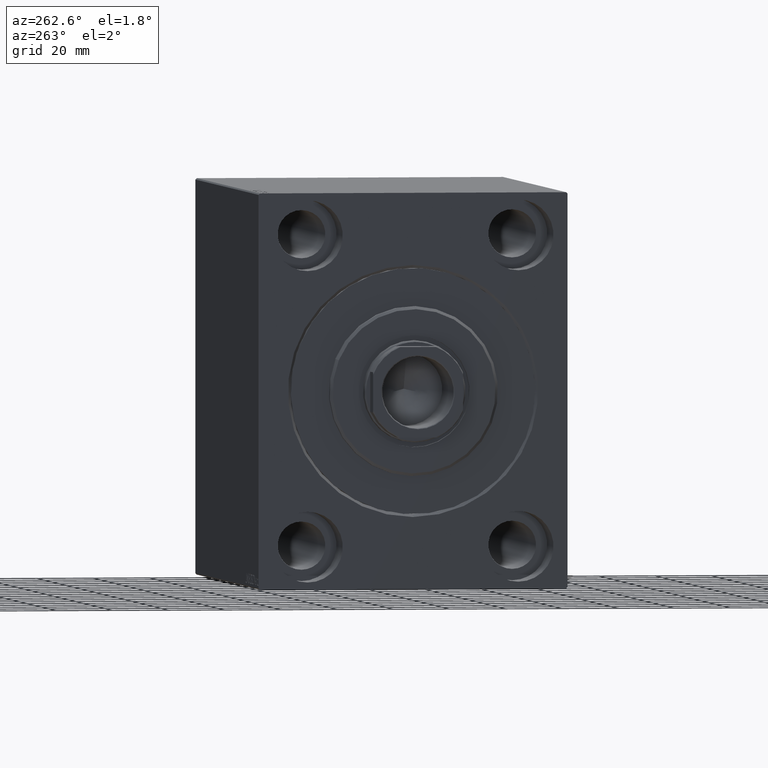
[diagram: clean part render]
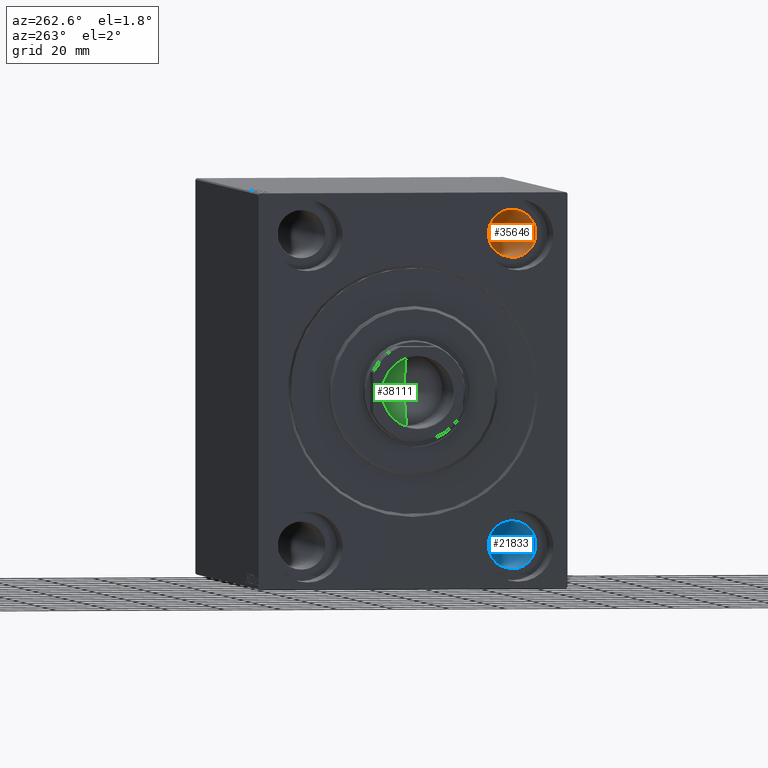
[diagram: same view with three faces highlighted in distinct colors, each labeled with its STEP entity id]
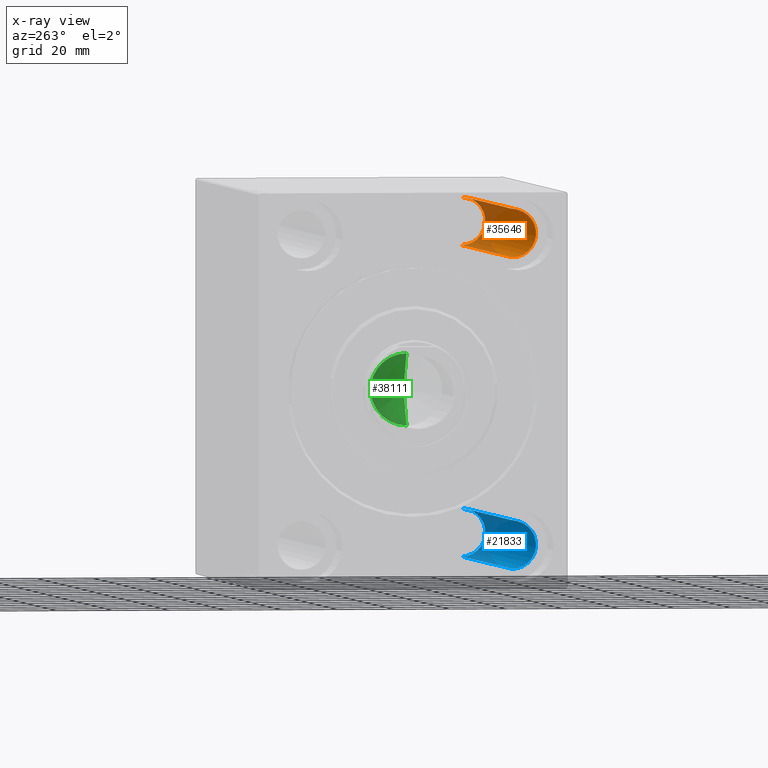
[diagram: x-ray of the same camera — body ghosted, the three highlighted faces saturated]
A machine part, auxiliary view with three faces highlighted in distinct colors.
The next image is the same camera in x-ray (body ghosted, the three faces saturated) — at least one of them is partly hidden behind the body in this view.
Their STEP definitions:

[orange] entity #35646 — the highlighted cylindrical surface (edge-blend (fillet) strip) has radius 8.5 mm, axis along (-1, -0, -0).
#3158 = VERTEX_POINT ( 'NONE', #20635 ) ;
#3247 = LINE ( 'NONE', #13944, #30637 ) ;
#3923 = ORIENTED_EDGE ( 'NONE', *, *, #6316, .T. ) ;
#4329 = DIRECTION ( 'NONE',  ( -1.000000000000000000, -0.000000000000000000, -0.000000000000000000 ) ) ;
#6017 = CARTESIAN_POINT ( 'NONE',  ( 173.0000000000000000, -37.50000000000000711, 55.00000000000000711 ) ) ;
#6291 = CARTESIAN_POINT ( 'NONE',  ( 155.9999999999999716, -37.50000000000000711, 55.00000000000000711 ) ) ;
#6316 = EDGE_CURVE ( 'NONE', #33287, #39830, #25066, .T. ) ;
#6669 = EDGE_CURVE ( 'NONE', #33287, #3158, #14480, .T. ) ;
#7268 = CIRCLE ( 'NONE', #15083, 8.499999999999992895 ) ;
#7787 = ORIENTED_EDGE ( 'NONE', *, *, #38730, .F. ) ;
#8178 = AXIS2_PLACEMENT_3D ( 'NONE', #6291, #15876, #29489 ) ;
#9372 = FACE_OUTER_BOUND ( 'NONE', #36812, .T. ) ;
#9732 = CARTESIAN_POINT ( 'NONE',  ( 155.9999999999999716, -37.50000000000000711, 46.50000000000001421 ) ) ;
#13944 = CARTESIAN_POINT ( 'NONE',  ( 173.0000000000000000, -37.50000000000000711, 63.50000000000000000 ) ) ;
#14480 = CIRCLE ( 'NONE', #8178, 8.499999999999992895 ) ;
#14768 = CARTESIAN_POINT ( 'NONE',  ( 17.00000000000001421, -37.50000000000000711, 46.50000000000001421 ) ) ;
#15083 = AXIS2_PLACEMENT_3D ( 'NONE', #31359, #38262, #20879 ) ;
#15876 = DIRECTION ( 'NONE',  ( -1.000000000000000000, -0.000000000000000000, -0.000000000000000000 ) ) ;
#18442 = CARTESIAN_POINT ( 'NONE',  ( 17.00000000000001421, -37.50000000000000711, 63.50000000000000000 ) ) ;
#19618 = DIRECTION ( 'NONE',  ( -1.000000000000000000, -0.000000000000000000, -0.000000000000000000 ) ) ;
#20635 = CARTESIAN_POINT ( 'NONE',  ( 155.9999999999999716, -37.50000000000000711, 63.50000000000000000 ) ) ;
#20879 = DIRECTION ( 'NONE',  ( 0.000000000000000000, 0.000000000000000000, 1.000000000000000000 ) ) ;
#21559 = EDGE_CURVE ( 'NONE', #39830, #34221, #7268, .T. ) ;
#23758 = VECTOR ( 'NONE', #4329, 1000.000000000000000 ) ;
#25066 = LINE ( 'NONE', #25280, #23758 ) ;
#25280 = CARTESIAN_POINT ( 'NONE',  ( 173.0000000000000000, -37.50000000000000711, 46.50000000000001421 ) ) ;
#27548 = DIRECTION ( 'NONE',  ( -1.000000000000000000, -0.000000000000000000, -0.000000000000000000 ) ) ;
#29489 = DIRECTION ( 'NONE',  ( 0.000000000000000000, 0.000000000000000000, -1.000000000000000000 ) ) ;
#29683 = ORIENTED_EDGE ( 'NONE', *, *, #21559, .T. ) ;
#30637 = VECTOR ( 'NONE', #27548, 1000.000000000000000 ) ;
#31359 = CARTESIAN_POINT ( 'NONE',  ( 17.00000000000001421, -37.50000000000000711, 55.00000000000000711 ) ) ;
#33220 = DIRECTION ( 'NONE',  ( 0.000000000000000000, 0.000000000000000000, 1.000000000000000000 ) ) ;
#33287 = VERTEX_POINT ( 'NONE', #9732 ) ;
#34221 = VERTEX_POINT ( 'NONE', #18442 ) ;
#34529 = ORIENTED_EDGE ( 'NONE', *, *, #6669, .F. ) ;
#35624 = AXIS2_PLACEMENT_3D ( 'NONE', #6017, #19618, #33220 ) ;
#35646 = ADVANCED_FACE ( 'NONE', ( #9372 ), #36127, .F. ) ;
#36127 = CYLINDRICAL_SURFACE ( 'NONE', #35624, 8.499999999999992895 ) ;
#36812 = EDGE_LOOP ( 'NONE', ( #34529, #3923, #29683, #7787 ) ) ;
#38262 = DIRECTION ( 'NONE',  ( -1.000000000000000000, 0.000000000000000000, 0.000000000000000000 ) ) ;
#38730 = EDGE_CURVE ( 'NONE', #3158, #34221, #3247, .T. ) ;
#39830 = VERTEX_POINT ( 'NONE', #14768 ) ;

[blue] entity #21833 — the highlighted cylindrical surface (edge-blend (fillet) strip) has radius 8.5 mm, axis along (-1, -0, -0).
#1514 = EDGE_LOOP ( 'NONE', ( #4709, #2466, #18331, #16770 ) ) ;
#1848 = AXIS2_PLACEMENT_3D ( 'NONE', #26862, #36670, #37559 ) ;
#2105 = LINE ( 'NONE', #28866, #14122 ) ;
#2466 = ORIENTED_EDGE ( 'NONE', *, *, #20677, .T. ) ;
#3036 = VERTEX_POINT ( 'NONE', #22875 ) ;
#3209 = CIRCLE ( 'NONE', #5329, 8.499999999999992895 ) ;
#4709 = ORIENTED_EDGE ( 'NONE', *, *, #11965, .F. ) ;
#5170 = VERTEX_POINT ( 'NONE', #38046 ) ;
#5329 = AXIS2_PLACEMENT_3D ( 'NONE', #24376, #41303, #37093 ) ;
#6349 = CYLINDRICAL_SURFACE ( 'NONE', #1848, 8.499999999999992895 ) ;
#6833 = CARTESIAN_POINT ( 'NONE',  ( 17.00000000000001421, -37.50000000000002132, -54.99999999999999289 ) ) ;
#9544 = CARTESIAN_POINT ( 'NONE',  ( 17.00000000000001421, -37.50000000000002132, -63.49999999999998579 ) ) ;
#11965 = EDGE_CURVE ( 'NONE', #29806, #5170, #3209, .T. ) ;
#12365 = DIRECTION ( 'NONE',  ( -1.000000000000000000, -0.000000000000000000, -0.000000000000000000 ) ) ;
#14122 = VECTOR ( 'NONE', #12365, 1000.000000000000000 ) ;
#16602 = VERTEX_POINT ( 'NONE', #9544 ) ;
#16770 = ORIENTED_EDGE ( 'NONE', *, *, #25059, .F. ) ;
#18331 = ORIENTED_EDGE ( 'NONE', *, *, #24543, .T. ) ;
#19005 = VECTOR ( 'NONE', #20491, 1000.000000000000000 ) ;
#20491 = DIRECTION ( 'NONE',  ( -1.000000000000000000, -0.000000000000000000, -0.000000000000000000 ) ) ;
#20677 = EDGE_CURVE ( 'NONE', #29806, #16602, #2105, .T. ) ;
#21833 = ADVANCED_FACE ( 'NONE', ( #33330 ), #6349, .F. ) ;
#22875 = CARTESIAN_POINT ( 'NONE',  ( 17.00000000000001421, -37.50000000000002132, -46.50000000000000000 ) ) ;
#24376 = CARTESIAN_POINT ( 'NONE',  ( 155.9999999999999716, -37.50000000000002132, -54.99999999999999289 ) ) ;
#24543 = EDGE_CURVE ( 'NONE', #16602, #3036, #30383, .T. ) ;
#25059 = EDGE_CURVE ( 'NONE', #5170, #3036, #40776, .T. ) ;
#26862 = CARTESIAN_POINT ( 'NONE',  ( 173.0000000000000000, -37.50000000000002132, -54.99999999999999289 ) ) ;
#27564 = DIRECTION ( 'NONE',  ( -1.000000000000000000, 0.000000000000000000, 0.000000000000000000 ) ) ;
#28866 = CARTESIAN_POINT ( 'NONE',  ( 173.0000000000000000, -37.50000000000002132, -63.49999999999998579 ) ) ;
#29806 = VERTEX_POINT ( 'NONE', #31816 ) ;
#30383 = CIRCLE ( 'NONE', #33948, 8.499999999999992895 ) ;
#31816 = CARTESIAN_POINT ( 'NONE',  ( 155.9999999999999716, -37.50000000000002132, -63.49999999999998579 ) ) ;
#33330 = FACE_OUTER_BOUND ( 'NONE', #1514, .T. ) ;
#33948 = AXIS2_PLACEMENT_3D ( 'NONE', #6833, #27564, #43610 ) ;
#36670 = DIRECTION ( 'NONE',  ( -1.000000000000000000, -0.000000000000000000, -0.000000000000000000 ) ) ;
#36996 = CARTESIAN_POINT ( 'NONE',  ( 173.0000000000000000, -37.50000000000002132, -46.50000000000000000 ) ) ;
#37093 = DIRECTION ( 'NONE',  ( 0.000000000000000000, 0.000000000000000000, -1.000000000000000000 ) ) ;
#37559 = DIRECTION ( 'NONE',  ( 0.000000000000000000, 0.000000000000000000, 1.000000000000000000 ) ) ;
#38046 = CARTESIAN_POINT ( 'NONE',  ( 155.9999999999999716, -37.50000000000002132, -46.50000000000000000 ) ) ;
#40776 = LINE ( 'NONE', #36996, #19005 ) ;
#41303 = DIRECTION ( 'NONE',  ( -1.000000000000000000, -0.000000000000000000, -0.000000000000000000 ) ) ;
#43610 = DIRECTION ( 'NONE',  ( 0.000000000000000000, 0.000000000000000000, 1.000000000000000000 ) ) ;

[green] entity #38111 — the highlighted conical surface has half-angle 59 deg.
#2096 = ORIENTED_EDGE ( 'NONE', *, *, #23997, .F. ) ;
#3025 = CARTESIAN_POINT ( 'NONE',  ( 12.74999999999999467, 0.000000000000000000, 134.0000000000000000 ) ) ;
#3402 = VERTEX_POINT ( 'NONE', #8078 ) ;
#8078 = CARTESIAN_POINT ( 'NONE',  ( -12.74999999999999467, 1.561424668912874519E-15, 134.0000000000000000 ) ) ;
#8568 = VERTEX_POINT ( 'NONE', #3025 ) ;
#9639 = CARTESIAN_POINT ( 'NONE',  ( 0.000000000000000000, 0.000000000000000000, 134.0000000000000000 ) ) ;
#10125 = EDGE_LOOP ( 'NONE', ( #2096, #29424, #33581 ) ) ;
#10508 = CIRCLE ( 'NONE', #24762, 12.74999999999999467 ) ;
#12771 = LINE ( 'NONE', #37513, #30700 ) ;
#13420 = DIRECTION ( 'NONE',  ( 1.000000000000000000, 0.000000000000000000, 0.000000000000000000 ) ) ;
#17168 = CONICAL_SURFACE ( 'NONE', #32116, 12.74999999999999467, 1.029744258676653645 ) ;
#17514 = FACE_OUTER_BOUND ( 'NONE', #10125, .T. ) ;
#18082 = EDGE_CURVE ( 'NONE', #8568, #3402, #10508, .T. ) ;
#19974 = CARTESIAN_POINT ( 'NONE',  ( 0.000000000000000000, 0.000000000000000000, 134.0000000000000000 ) ) ;
#23012 = DIRECTION ( 'NONE',  ( -0.000000000000000000, -0.000000000000000000, 1.000000000000000000 ) ) ;
#23671 = LINE ( 'NONE', #41038, #36069 ) ;
#23997 = EDGE_CURVE ( 'NONE', #41043, #3402, #23671, .T. ) ;
#24762 = AXIS2_PLACEMENT_3D ( 'NONE', #9639, #23012, #13420 ) ;
#29424 = ORIENTED_EDGE ( 'NONE', *, *, #41706, .T. ) ;
#30700 = VECTOR ( 'NONE', #43974, 1000.000000000000000 ) ;
#31242 = DIRECTION ( 'NONE',  ( -0.8571673007021118895, 1.049727191138618079E-16, 0.5150380749100549327 ) ) ;
#32116 = AXIS2_PLACEMENT_3D ( 'NONE', #19974, #37807, #34246 ) ;
#33202 = CARTESIAN_POINT ( 'NONE',  ( -1.026246296720136938E-14, 0.000000000000000000, 126.3390271073986071 ) ) ;
#33581 = ORIENTED_EDGE ( 'NONE', *, *, #18082, .T. ) ;
#34246 = DIRECTION ( 'NONE',  ( 1.000000000000000000, 0.000000000000000000, 0.000000000000000000 ) ) ;
#36069 = VECTOR ( 'NONE', #31242, 1000.000000000000000 ) ;
#37513 = CARTESIAN_POINT ( 'NONE',  ( 12.74999999999999467, 0.000000000000000000, 134.0000000000000000 ) ) ;
#37807 = DIRECTION ( 'NONE',  ( -0.000000000000000000, -0.000000000000000000, 1.000000000000000000 ) ) ;
#38111 = ADVANCED_FACE ( 'NONE', ( #17514 ), #17168, .F. ) ;
#41038 = CARTESIAN_POINT ( 'NONE',  ( -12.74999999999999467, 1.561424668912874519E-15, 134.0000000000000000 ) ) ;
#41043 = VERTEX_POINT ( 'NONE', #33202 ) ;
#41706 = EDGE_CURVE ( 'NONE', #41043, #8568, #12771, .T. ) ;
#43974 = DIRECTION ( 'NONE',  ( 0.8571673007021118895, 0.000000000000000000, 0.5150380749100549327 ) ) ;